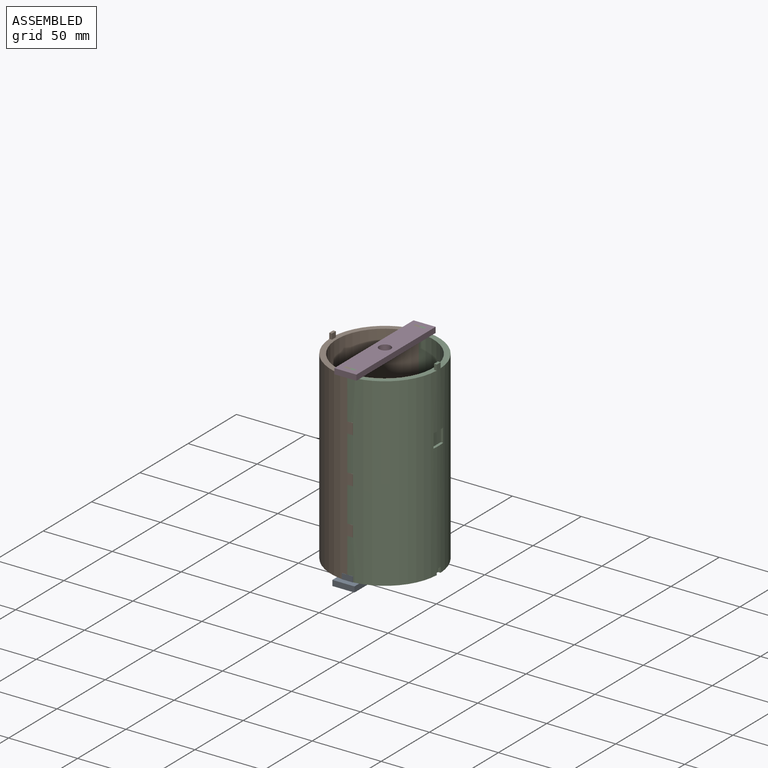
[diagram: assembled view]
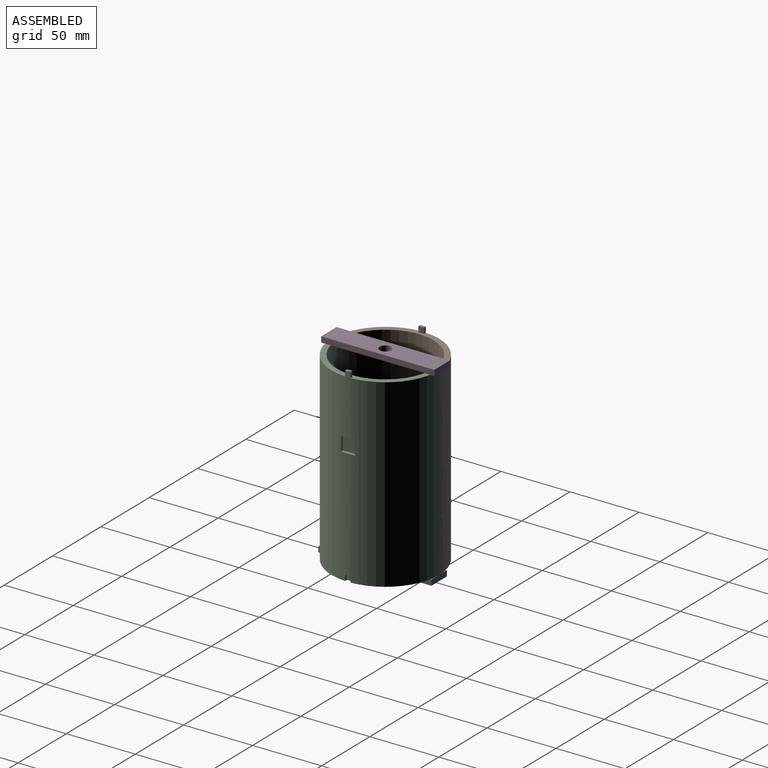
[diagram: assembled view, second angle]
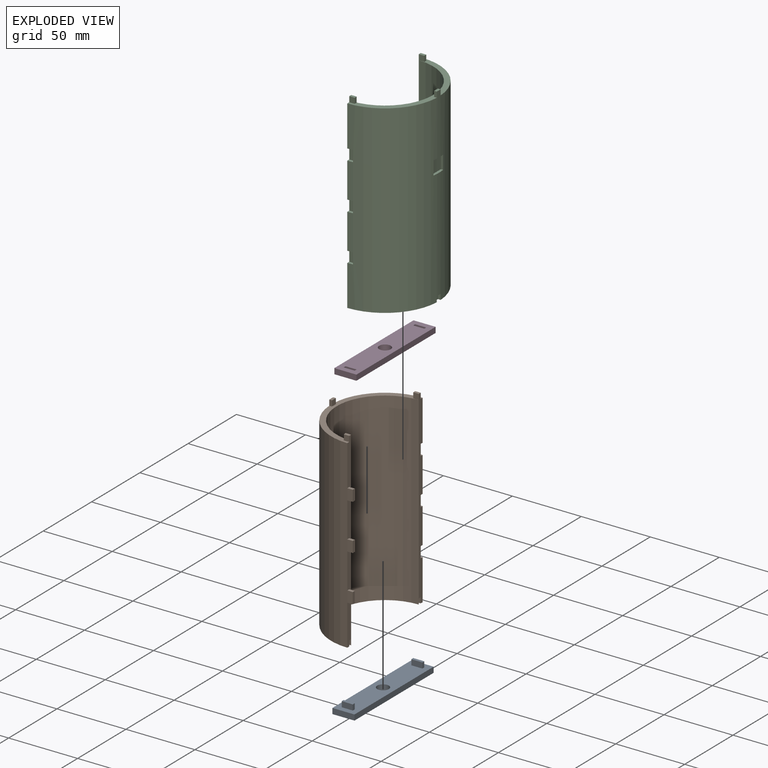
[diagram: exploded view]
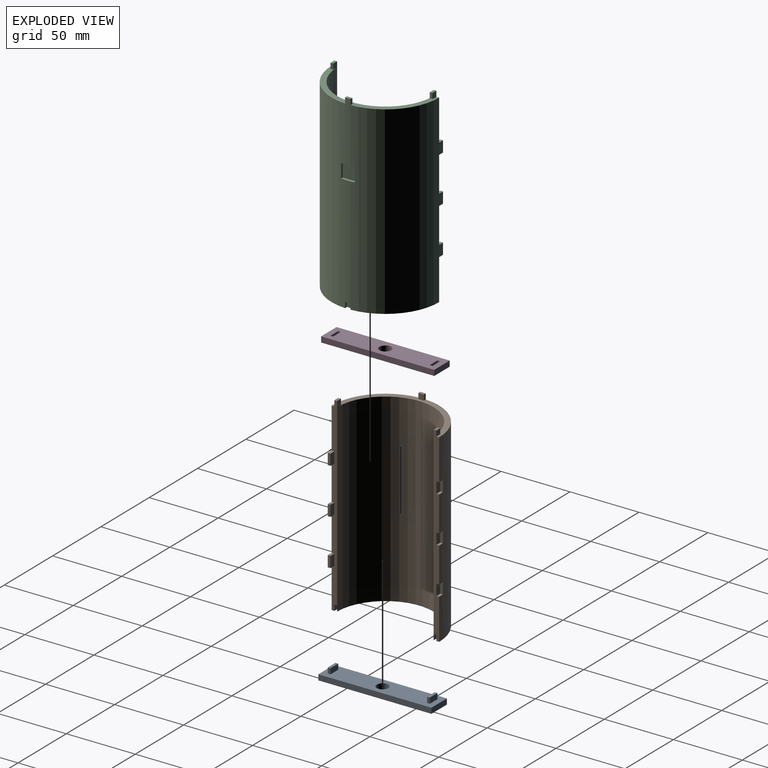
[diagram: exploded view, second angle]
ASSEMBLY  parts=4 mates=3
PART A: 17 faces, bbox 82x16x8 mm
  f0: plane 16x4mm, normal (1,0,0), area 64mm2, adj f1,f4,f5,f6
  f1: plane 82x4mm, normal (0,1,0), area 328mm2, adj f0,f2,f5,f6
  f2: plane 16x4mm, normal (-1,0,0), area 64mm2, adj f1,f4,f5,f6
  f3: cylinder r=4.25mm len=8.5mm, axis (0,0,-1), area 106.8mm2, adj f5,f6
  f4: plane 82x4mm, normal (0,-1,0), area 328mm2, adj f0,f2,f5,f6
  f5: plane 82x16mm, normal (0,0,1), area 1223.3mm2, adj f0,f1,f2,f3,f4,f8,f9,f10
  f6: plane 82x16mm, normal (0,0,-1), area 1255.3mm2, adj f0,f1,f2,f3,f4
  f7: plane 8x2mm, normal (0,0,1), area 16mm2, adj f8,f9,f10,f11
  f8: plane 8x4mm, normal (-1,0,0), area 32mm2, adj f5,f7,f9,f11
  f9: plane 4x2mm, normal (0,-1,0), area 8mm2, adj f5,f7,f8,f10
  f10: plane 8x4mm, normal (1,0,0), area 32mm2, adj f5,f7,f9,f11
  f11: plane 4x2mm, normal (0,1,0), area 8mm2, adj f5,f7,f8,f10
  f12: plane 8x2mm, normal (0,0,1), area 16mm2, adj f13,f14,f15,f16
  f13: plane 8x4mm, normal (-1,0,0), area 32mm2, adj f5,f12,f14,f16
  f14: plane 4x2mm, normal (0,-1,0), area 8mm2, adj f5,f12,f13,f15
  f15: plane 8x4mm, normal (1,0,0), area 32mm2, adj f5,f12,f14,f16
  f16: plane 4x2mm, normal (0,1,0), area 8mm2, adj f5,f12,f13,f15
PART B: 62 faces, bbox 43x78x138 mm
  f0: cylinder r=39mm len=138mm, axis (0,0,-1), area 16221.5mm2, adj f1,f2,f3,f4,f6,f8,f9,f22
  f1: plane 138x4mm, normal (-1,0,0), area 488mm2, adj f0,f3,f4,f5,f14,f15,f17,f27
  f2: plane 138x4mm, normal (-1,0,0), area 488mm2, adj f0,f3,f4,f5,f10,f12,f13,f20
  f3: plane 78x38.95mm, normal (0,0,-1), area 441mm2, adj f0,f1,f2,f5,f18,f19,f20,f22
  f4: plane 78x38.95mm, normal (0,0,1), area 441mm2, adj f0,f1,f2,f5,f6,f7,f8,f10
  f5: cylinder r=35mm len=134mm, axis (0,0,-1), area 14734.1mm2, adj f1,f2,f3,f4,f18,f26
  f6: plane 4x1.95mm, normal (0,1,0), area 7.8mm2, adj f0,f4,f7,f9
  f7: plane 4x4mm, normal (-1,0,0), area 16mm2, adj f4,f6,f8,f9
  f8: plane 4x1.95mm, normal (0,-1,0), area 7.8mm2, adj f0,f4,f7,f9
  f9: plane 4x2mm, normal (0,0,1), area 7.9mm2, adj f0,f6,f7,f8
  f10: plane 4x4mm, normal (0,-1,0), area 16mm2, adj f2,f4,f11,f13
  f11: plane 4x2mm, normal (1,0,0), area 8mm2, adj f4,f10,f12,f13
  f12: plane 4x4mm, normal (0,1,0), area 16mm2, adj f2,f4,f11,f13
  f13: plane 4x2mm, normal (0,0,1), area 8mm2, adj f2,f10,f11,f12
  f14: plane 4x4mm, normal (0,1,0), area 16mm2, adj f1,f4,f16,f17
  f15: plane 4x4mm, normal (0,-1,0), area 16mm2, adj f1,f4,f16,f17
  f16: plane 4x2mm, normal (1,0,0), area 8mm2, adj f4,f14,f15,f17
  f17: plane 4x2mm, normal (0,0,1), area 8mm2, adj f1,f14,f15,f16
  f18: plane 4x4mm, normal (0,1,0), area 16mm2, adj f3,f5,f19,f21
  f19: plane 4x2mm, normal (-1,0,0), area 8mm2, adj f3,f18,f20,f21
  f20: plane 4x4mm, normal (0,-1,0), area 16mm2, adj f2,f3,f19,f21
  f21: plane 4x2mm, normal (0,0,-1), area 8mm2, adj f2,f18,f19,f20
  f22: plane 4x1.95mm, normal (0,-1,0), area 7.8mm2, adj f0,f3,f23,f25
  f23: plane 4x4mm, normal (1,0,0), area 16mm2, adj f3,f22,f24,f25
  f24: plane 4x1.95mm, normal (0,1,0), area 7.8mm2, adj f0,f3,f23,f25
  f25: plane 4x2mm, normal (0,0,-1), area 7.9mm2, adj f0,f22,f23,f24
  f26: plane 4x4mm, normal (0,-1,0), area 16mm2, adj f3,f5,f28,f29
  f27: plane 4x4mm, normal (0,1,0), area 16mm2, adj f1,f3,f28,f29
  f28: plane 4x2mm, normal (-1,0,0), area 8mm2, adj f3,f26,f27,f29
  f29: plane 4x2mm, normal (0,0,-1), area 8mm2, adj f1,f26,f27,f28
  f30: plane 8x4mm, normal (0,1,0), area 32mm2, adj f0,f31,f33,f34
  f31: plane 4x2mm, normal (0,0,-1), area 8mm2, adj f2,f30,f32,f34
  f32: plane 8x4mm, normal (0,-1,0), area 32mm2, adj f2,f31,f33,f34
  f33: plane 4x2mm, normal (0,0,1), area 8mm2, adj f2,f30,f32,f34
  f34: plane 8x2mm, normal (-1,0,0), area 16mm2, adj f30,f31,f32,f33
  f35: plane 8x4mm, normal (0,1,0), area 32mm2, adj f0,f36,f38,f39
  f36: plane 4x2mm, normal (0,0,-1), area 8mm2, adj f2,f35,f37,f39
  f37: plane 8x4mm, normal (0,-1,0), area 32mm2, adj f2,f36,f38,f39
  f38: plane 4x2mm, normal (0,0,1), area 8mm2, adj f2,f35,f37,f39
  f39: plane 8x2mm, normal (-1,0,0), area 16mm2, adj f35,f36,f37,f38
  f40: plane 8x4mm, normal (0,1,0), area 32mm2, adj f0,f41,f43,f44
  f41: plane 4x2mm, normal (0,0,-1), area 8mm2, adj f2,f40,f42,f44
  f42: plane 8x4mm, normal (0,-1,0), area 32mm2, adj f2,f41,f43,f44
  f43: plane 4x2mm, normal (0,0,1), area 8mm2, adj f2,f40,f42,f44
  f44: plane 8x2mm, normal (-1,0,0), area 16mm2, adj f40,f41,f42,f43
  f45: plane 4x2mm, normal (0,0,-1), area 7.7mm2, adj f0,f1,f47,f48
  f46: plane 4x2mm, normal (0,0,1), area 7.7mm2, adj f0,f1,f47,f48
  f47: plane 8x1.79mm, normal (-1,0,0), area 14.4mm2, adj f0,f45,f46,f48
  f48: plane 8x4mm, normal (0,-1,0), area 32mm2, adj f1,f45,f46,f47
  f49: plane 4x2mm, normal (0,0,1), area 7.7mm2, adj f0,f1,f51,f52
  f50: plane 4x2mm, normal (0,0,-1), area 7.7mm2, adj f0,f1,f51,f52
  f51: plane 8x1.79mm, normal (-1,0,0), area 14.4mm2, adj f0,f49,f50,f52
  f52: plane 8x4mm, normal (0,-1,0), area 32mm2, adj f1,f49,f50,f51
  f53: plane 4x2mm, normal (0,0,1), area 7.7mm2, adj f0,f1,f55,f56
  f54: plane 4x2mm, normal (0,0,-1), area 7.7mm2, adj f0,f1,f55,f56
  f55: plane 8x1.79mm, normal (-1,0,0), area 14.4mm2, adj f0,f53,f54,f56
  f56: plane 8x4mm, normal (0,-1,0), area 32mm2, adj f1,f53,f54,f55
  f57: plane 10x1.68mm, normal (0,1,0), area 16.8mm2, adj f0,f58,f60,f61
  f58: plane 10x2mm, normal (0,0,1), area 18.9mm2, adj f0,f57,f59,f61
  f59: plane 10x1.68mm, normal (0,-1,0), area 16.8mm2, adj f0,f58,f60,f61
  f60: plane 10x2mm, normal (0,0,-1), area 18.9mm2, adj f0,f57,f59,f61
  f61: plane 10x10mm, normal (1,0,0), area 100mm2, adj f57,f58,f59,f60
PART C: same geometry as B
PART D: 15 faces, bbox 82x16x4 mm
  f0: plane 16x4mm, normal (1,0,0), area 64mm2, adj f1,f12,f13,f14
  f1: plane 82x4mm, normal (0,1,0), area 328mm2, adj f0,f2,f13,f14
  f2: plane 16x4mm, normal (-1,0,0), area 64mm2, adj f1,f12,f13,f14
  f3: plane 4x2mm, normal (0,-1,0), area 8mm2, adj f4,f9,f13,f14
  f4: plane 8x4mm, normal (-1,0,0), area 32mm2, adj f3,f5,f13,f14
  f5: plane 4x2mm, normal (0,1,0), area 8mm2, adj f4,f9,f13,f14
  f6: plane 4x2mm, normal (0,-1,0), area 8mm2, adj f7,f10,f13,f14
  f7: plane 8x4mm, normal (-1,0,0), area 32mm2, adj f6,f8,f13,f14
  f8: plane 4x2mm, normal (0,1,0), area 8mm2, adj f7,f10,f13,f14
  f9: plane 8x4mm, normal (1,0,0), area 32mm2, adj f3,f5,f13,f14
  f10: plane 8x4mm, normal (1,0,0), area 32mm2, adj f6,f8,f13,f14
  f11: cylinder r=4.25mm len=8.5mm, axis (0,0,-1), area 106.8mm2, adj f13,f14
  f12: plane 82x4mm, normal (0,-1,0), area 328mm2, adj f0,f2,f13,f14
  f13: plane 82x16mm, normal (0,0,1), area 1223.3mm2, adj f0,f1,f2,f3,f4,f5,f6,f7
  f14: plane 82x16mm, normal (0,0,-1), area 1223.3mm2, adj f0,f1,f2,f3,f4,f5,f6,f7
PLACE A rot(axis=(0,0,-1),90deg) t=(-135.41,56.65,-23.48)mm
PLACE B rot(axis=(0,0,-1),180deg) t=(-50.42,-74.01,-19.48)mm
PLACE C t=(-50.42,-74.01,-19.48)mm
PLACE D rot(axis=(0,0,-1),90deg) t=(-103.75,38.91,114.52)mm
MATE fastened A.f7 <-> C.f29  axis (0,0,1) through (-50.42,-111.01,-15.48)mm
MATE fastened D.f13 <-> B.f13  axis (0,0,1) through (-50.42,-111.01,118.52)mm
MATE fastened C.f17 <-> B.f13  axis (0,0,1) through (-50.42,-110.01,118.52)mm
